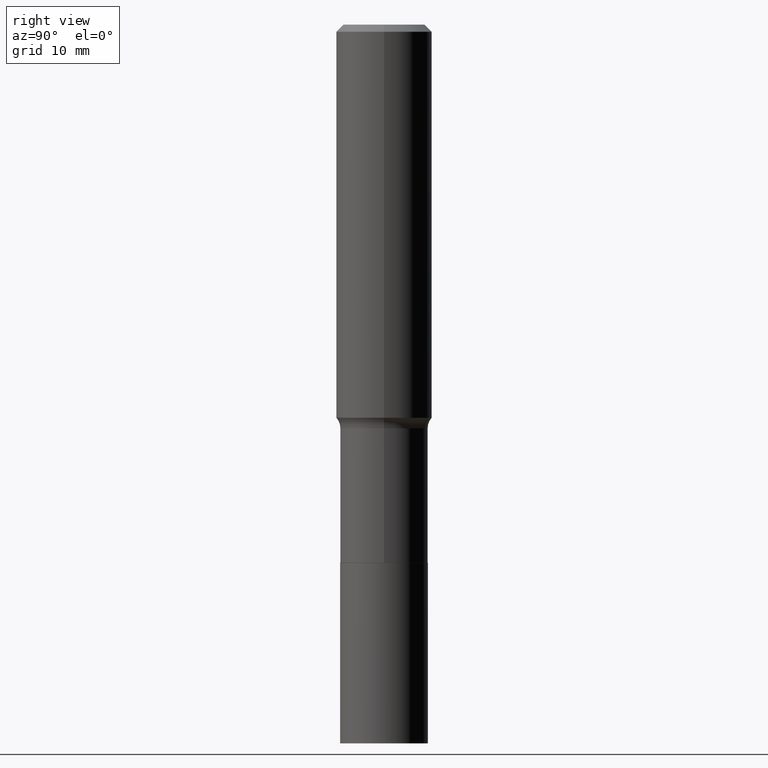
[diagram: clean part render]
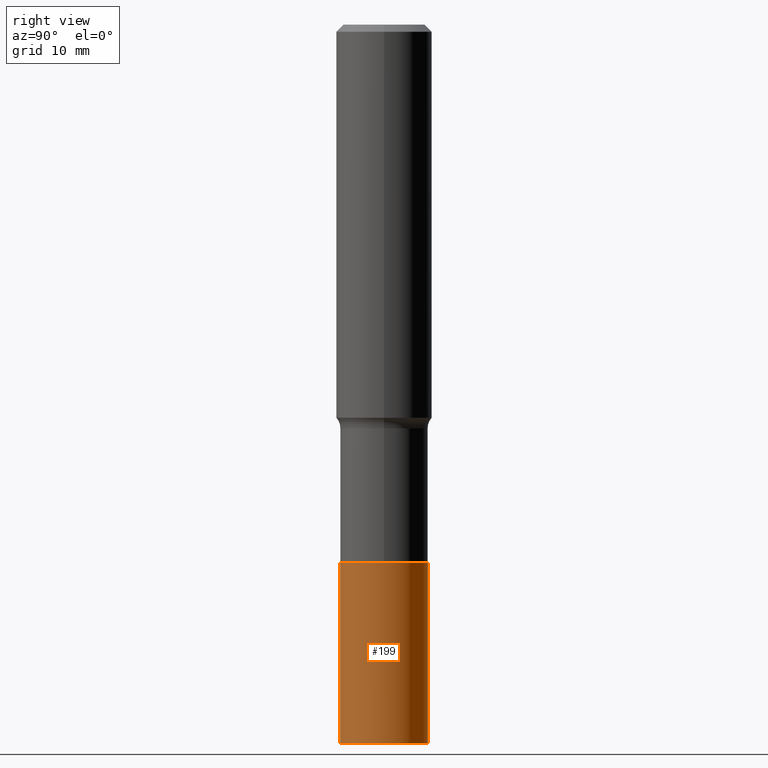
[diagram: same view with one face highlighted and labeled with its STEP entity id]
A machine part, right view. The second image highlights one B-rep face of the part: STEP entity #199.
In plain terms, the highlighted cylindrical surface (partial cylindrical patch) has radius 5.5004 mm, axis along (-0, 0, 1).
Its self-contained STEP definition (entity closure, byte-faithful):
#8 = CARTESIAN_POINT ( 'NONE',  ( 1.538680294288561586E-15, 0.2165499999999907499, -2.653300000000000214 ) ) ;
#14 = AXIS2_PLACEMENT_3D ( 'NONE', #256, #222, #370 ) ;
#31 = CYLINDRICAL_SURFACE ( 'NONE', #371, 0.2165500000000000203 ) ;
#33 = CARTESIAN_POINT ( 'NONE',  ( 6.488562383451022229E-29, -9.263947436352516081E-15, -2.653299999999999770 ) ) ;
#77 = CARTESIAN_POINT ( 'NONE',  ( -1.512160567852874245E-15, -0.2165500000000123715, -3.543299999999999894 ) ) ;
#83 = VECTOR ( 'NONE', #404, 39.37007874015748143 ) ;
#97 = DIRECTION ( 'NONE',  ( -6.982962677686265133E-15, -1.000000000000000000, 2.523064413451178124E-15 ) ) ;
#120 = DIRECTION ( 'NONE',  ( -2.443805902237646551E-29, 3.493862711942566670E-15, 1.000000000000000000 ) ) ;
#153 = DIRECTION ( 'NONE',  ( -2.443805902237646271E-29, 3.493862711942566670E-15, 1.000000000000000000 ) ) ;
#163 = DIRECTION ( 'NONE',  ( -6.982962677686265133E-15, -1.000000000000000000, 2.523064413451178124E-15 ) ) ;
#175 = ORIENTED_EDGE ( 'NONE', *, *, #423, .F. ) ;
#187 = FACE_OUTER_BOUND ( 'NONE', #347, .T. ) ;
#194 = CARTESIAN_POINT ( 'NONE',  ( 1.538680294288583674E-15, 0.2165499999999907499, -2.653300000000000214 ) ) ;
#199 = ADVANCED_FACE ( 'NONE', ( #187 ), #31, .T. ) ;
#201 = DIRECTION ( 'NONE',  ( -2.443805902237646271E-29, 3.493862711942566670E-15, 1.000000000000000000 ) ) ;
#207 = EDGE_CURVE ( 'NONE', #413, #340, #230, .T. ) ;
#222 = DIRECTION ( 'NONE',  ( -2.443805902237646271E-29, 3.493862711942566670E-15, 1.000000000000000000 ) ) ;
#230 = CIRCLE ( 'NONE', #14, 0.2165500000000000203 ) ;
#231 = CARTESIAN_POINT ( 'NONE',  ( -1.512160567852896136E-15, -0.2165500000000092629, -2.653299999999999326 ) ) ;
#237 = CARTESIAN_POINT ( 'NONE',  ( 6.488562383451022229E-29, -9.263947436352516081E-15, -2.653299999999999770 ) ) ;
#256 = CARTESIAN_POINT ( 'NONE',  ( 8.663549636442529927E-29, -1.237348524998140250E-14, -3.543300000000000338 ) ) ;
#288 = VERTEX_POINT ( 'NONE', #301 ) ;
#301 = CARTESIAN_POINT ( 'NONE',  ( -1.512160567852896136E-15, -0.2165500000000092629, -2.653299999999999326 ) ) ;
#337 = CIRCLE ( 'NONE', #389, 0.2165500000000000203 ) ;
#340 = VERTEX_POINT ( 'NONE', #431 ) ;
#347 = EDGE_LOOP ( 'NONE', ( #451, #458, #175, #373 ) ) ;
#351 = EDGE_CURVE ( 'NONE', #413, #288, #427, .T. ) ;
#352 = VERTEX_POINT ( 'NONE', #194 ) ;
#370 = DIRECTION ( 'NONE',  ( -6.982962677686265133E-15, -1.000000000000000000, 2.523064413451178124E-15 ) ) ;
#371 = AXIS2_PLACEMENT_3D ( 'NONE', #33, #153, #97 ) ;
#373 = ORIENTED_EDGE ( 'NONE', *, *, #351, .F. ) ;
#375 = LINE ( 'NONE', #8, #383 ) ;
#383 = VECTOR ( 'NONE', #120, 39.37007874015748143 ) ;
#389 = AXIS2_PLACEMENT_3D ( 'NONE', #237, #201, #163 ) ;
#404 = DIRECTION ( 'NONE',  ( -2.443805902237646551E-29, 3.493862711942566670E-15, 1.000000000000000000 ) ) ;
#407 = EDGE_CURVE ( 'NONE', #340, #352, #375, .T. ) ;
#413 = VERTEX_POINT ( 'NONE', #77 ) ;
#423 = EDGE_CURVE ( 'NONE', #288, #352, #337, .T. ) ;
#427 = LINE ( 'NONE', #231, #83 ) ;
#431 = CARTESIAN_POINT ( 'NONE',  ( 1.538680294288572433E-15, 0.2165499999999876413, -3.543300000000000782 ) ) ;
#451 = ORIENTED_EDGE ( 'NONE', *, *, #207, .T. ) ;
#458 = ORIENTED_EDGE ( 'NONE', *, *, #407, .T. ) ;